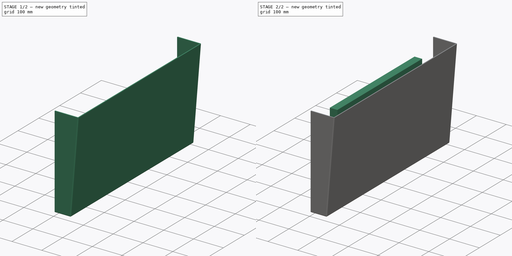
[diagram: build sequence overview — one tinted view per stage of 2, left to right]
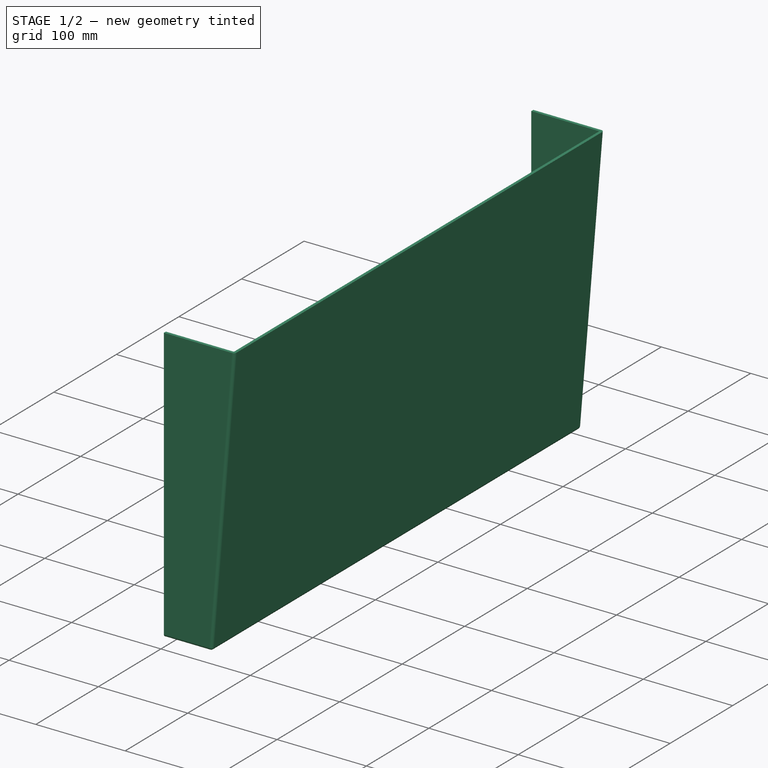
[diagram: stage 1 of 2 — iso view after this stage's code; geometry added in this stage tinted green]
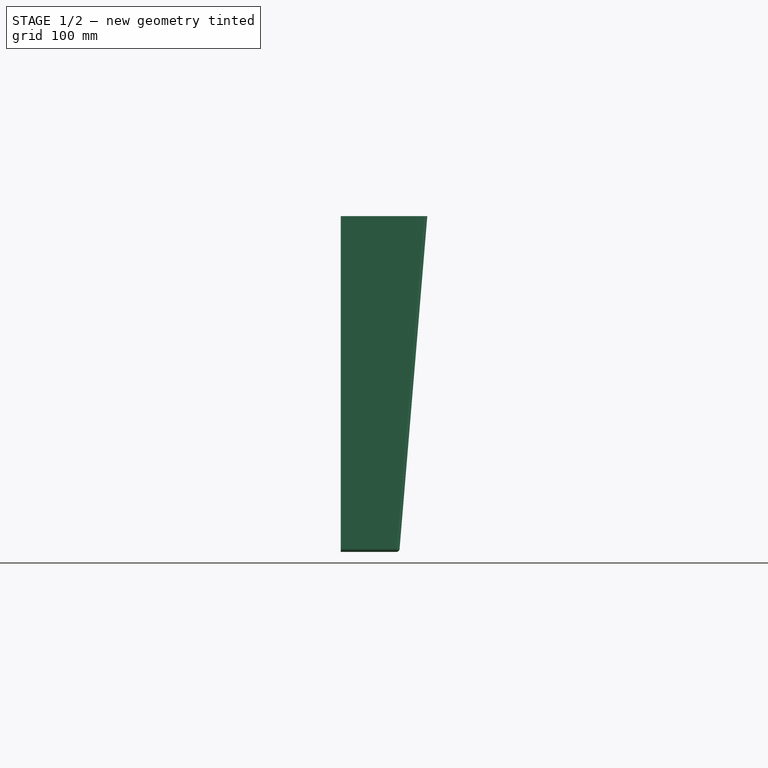
[diagram: stage 1 of 2 — front view after this stage's code; geometry added in this stage tinted green]
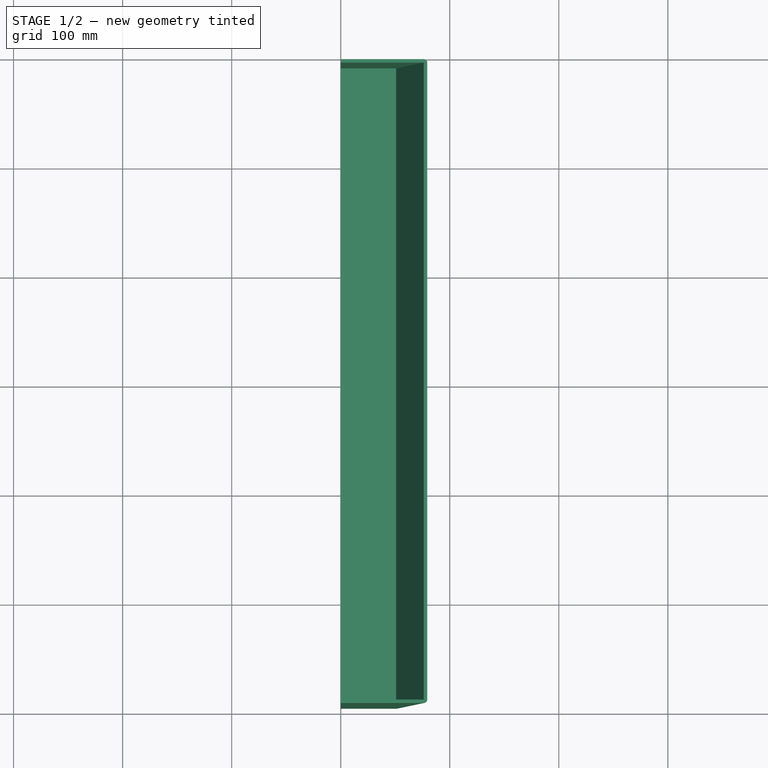
[diagram: stage 1 of 2 — top view after this stage's code; geometry added in this stage tinted green]
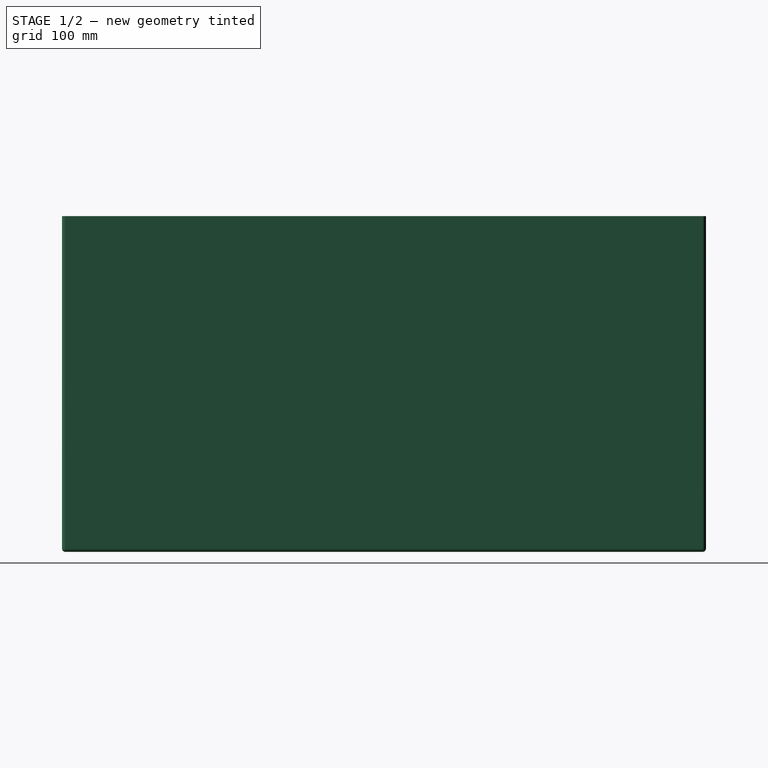
[diagram: stage 1 of 2 — right view after this stage's code; geometry added in this stage tinted green]
FCSTD DOCUMENT  (FreeCAD 1.0R39109 (Git))
Label: intake
License: All rights reserved
LicenseURL: http://en.wikipedia.org/wiki/All_rights_reserved
objects: Sketcher::SketchObject×2, PartDesign::Pad×2, PartDesign::Body×2, PartDesign::Thickness×1
note: 15 computed .brp shape members not serialized (recipe doc carries the construction recipe); baked Part::Feature solids carry a one-line shape summary decoded from their .brp
EXTERNAL_REF file=enclosure-dims.FCStd obj=Spreadsheet

FEATURE [PartDesign::Body] Body  label="filter001"
  AllowCompound = false
  Group = -> [Sketch,Pad]
  Origin = -> Origin
  Tip = -> Pad
FEATURE [Sketcher::SketchObject] Sketch001
  ArcFitTolerance = 0
  FullyConstrained = true
  MakeInternals = false
  MapMode = 5
  Placement = pos=(0,0,0) rot=(1,0,0;1.5708rad)
  expr: Constraints[8] = 2 * <<enclosure-dims>>#<<Spreadsheet>>.base_t + <<enclosure-dims>>#<<Spreadsheet>>.exhaust_w
  sketch-geometry (4):
    g0: LineSegment StartX=0 StartY=-177.8 StartZ=0 EndX=50.8 EndY=-177.8 EndZ=0
    g1: LineSegment StartX=50.8 StartY=-177.8 StartZ=0 EndX=76.2 EndY=127 EndZ=0
    g2: LineSegment StartX=76.2 StartY=127 StartZ=0 EndX=0 EndY=127 EndZ=0
    g3: LineSegment StartX=0 StartY=127 StartZ=0 EndX=0 EndY=-177.8 EndZ=0
  constraints (12):
    c: Horizontal(g0)
    c: Coincident(g0,g1)
    c: Coincident(g1,g2)
    c: PointOnObject(g2,g-2)
    c: Coincident(g2,g3)
    c: Coincident(g3,g0)
    c: Vertical(g3)
    c: Horizontal(g2)
    c: DistanceX(g2,g2) = 76.2
    c: DistanceX(g0,g0) = 50.8
    c: DistanceY(g3,g3) = 304.8
    c: DistanceY(g-1,g2) = 127
FEATURE [PartDesign::Pad] Pad001
  Direction = (0,-1,2e-16)
  Length = 584.2
  Length2 = 10
  Midplane = true
  Placement = pos=(0,0,0) rot=(1,0,0;1.5708rad)
  Profile = -> Sketch001
  ReferenceAxis = -> Sketch001 [N_Axis]
  Suppressed = false
  Type = 0
FEATURE [PartDesign::Thickness] Thickness
  Base = -> Pad001 [Face3,Face4]
  BaseFeature = -> Pad001
  Intersection = false
  Join = 0
  Mode = 0
  SupportTransform = false
  Suppressed = false
  Value = 3.175
FEATURE [PartDesign::Body] Body001  label="transition"
  AllowCompound = false
  Group = -> [Sketch001,Pad001,Thickness]
  Origin = -> Origin001
  Tip = -> Thickness
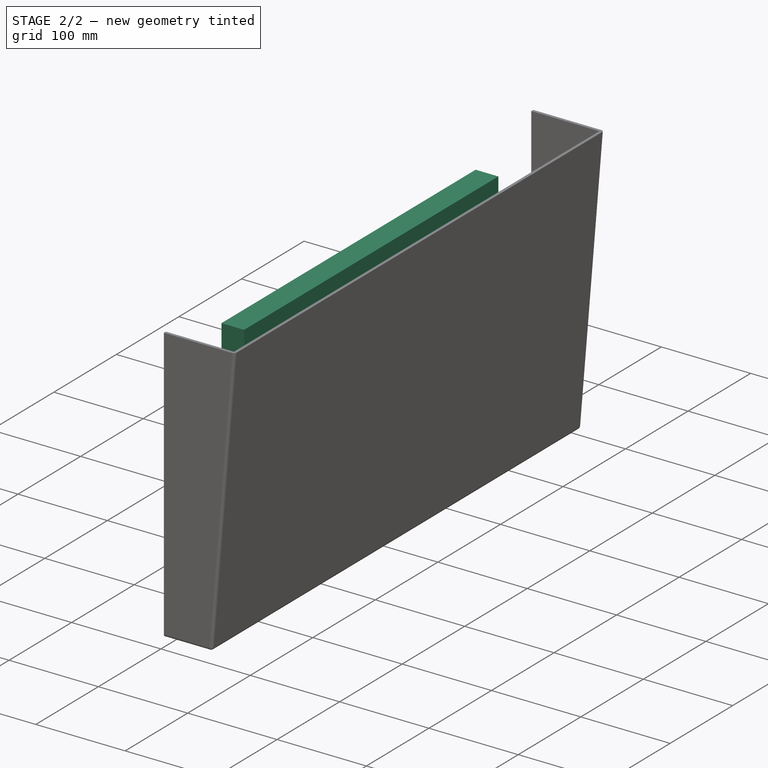
[diagram: stage 2 of 2 — iso view after this stage's code; geometry added in this stage tinted green]
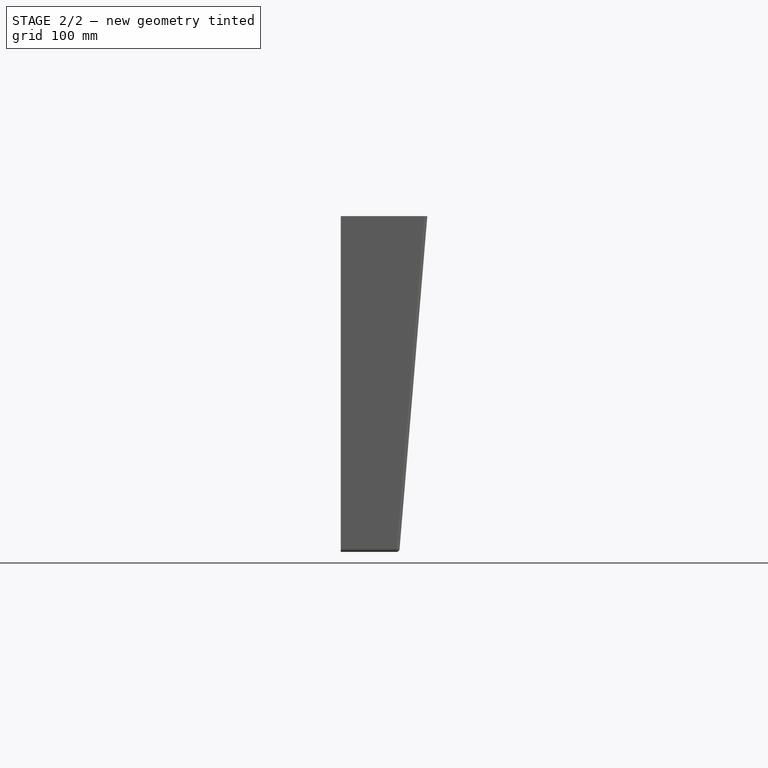
[diagram: stage 2 of 2 — front view after this stage's code; geometry added in this stage tinted green]
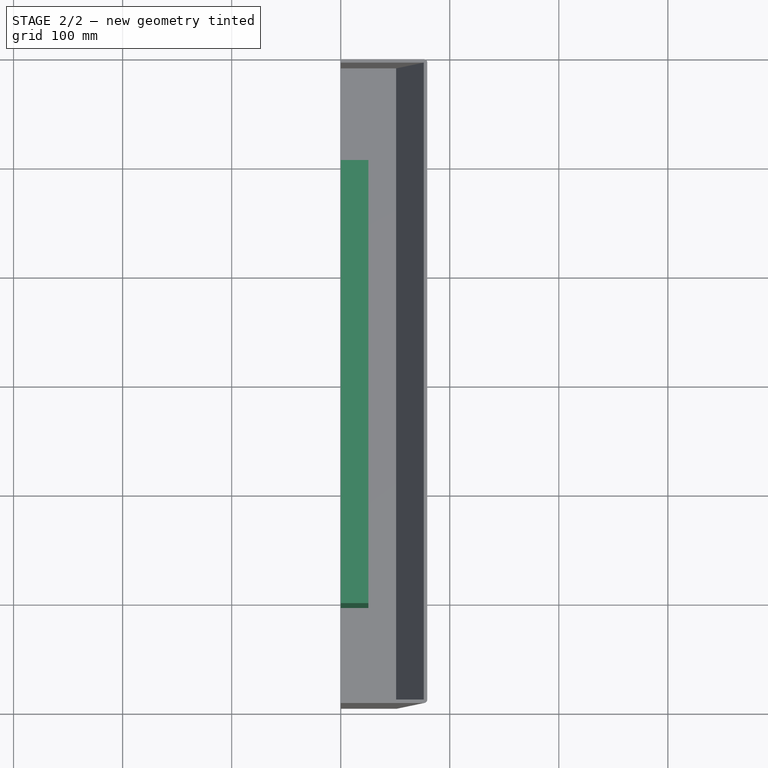
[diagram: stage 2 of 2 — top view after this stage's code; geometry added in this stage tinted green]
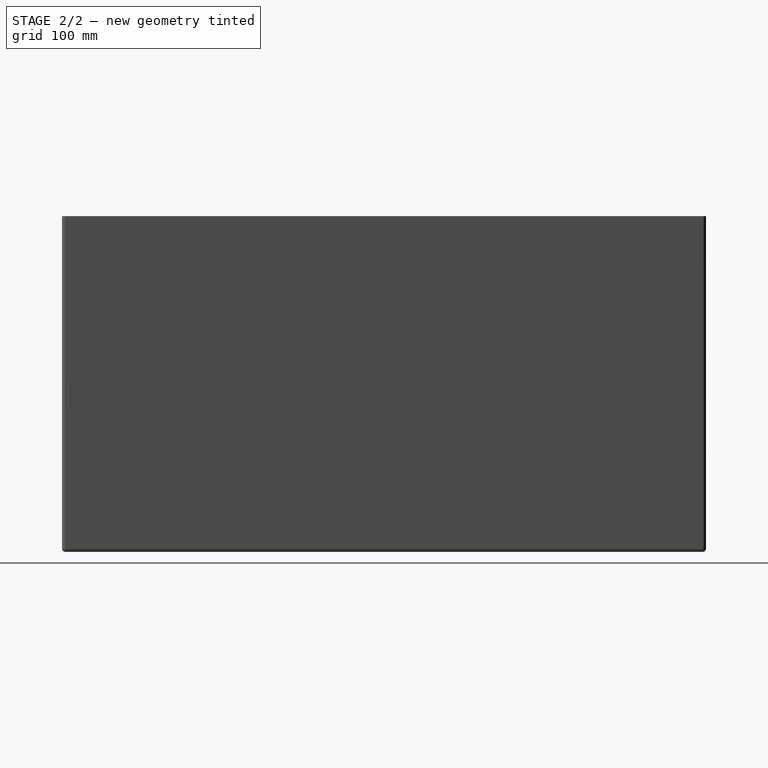
[diagram: stage 2 of 2 — right view after this stage's code; geometry added in this stage tinted green]
FEATURE [Sketcher::SketchObject] Sketch
  ArcFitTolerance = 0
  FullyConstrained = true
  MakeInternals = false
  MapMode = 5
  Placement = pos=(0,0,0) rot=(0.57735,0.57735,0.57735;2.0944rad)
  sketch-geometry (4):
    g0: LineSegment StartX=-203.2 StartY=101.6 StartZ=0 EndX=203.2 EndY=101.6 EndZ=0
    g1: LineSegment StartX=203.2 StartY=101.6 StartZ=0 EndX=203.2 EndY=-152.4 EndZ=0
    g2: LineSegment StartX=203.2 StartY=-152.4 StartZ=0 EndX=-203.2 EndY=-152.4 EndZ=0
    g3: LineSegment StartX=-203.2 StartY=-152.4 StartZ=0 EndX=-203.2 EndY=101.6 EndZ=0
  constraints (11):
    c: Coincident(g0,g1)
    c: Coincident(g1,g2)
    c: Coincident(g2,g3)
    c: Coincident(g3,g0)
    c: Horizontal(g2)
    c: Vertical(g1)
    c: DistanceX(g0,g0) = 406.4
    c: Symmetric(g0,g0,g-2)
    c: DistanceY(g3,g3) = 254
    c: DistanceY(g-1,g0) = 101.6
    c: Vertical(g3)
FEATURE [PartDesign::Pad] Pad  label="filter"
  Direction = (1,1e-16,-1e-16)
  Length = 25.4
  Length2 = 10
  Placement = pos=(0,0,0) rot=(0.57735,0.57735,0.57735;2.0944rad)
  Profile = -> Sketch
  ReferenceAxis = -> Sketch [N_Axis]
  Suppressed = false
  Type = 0
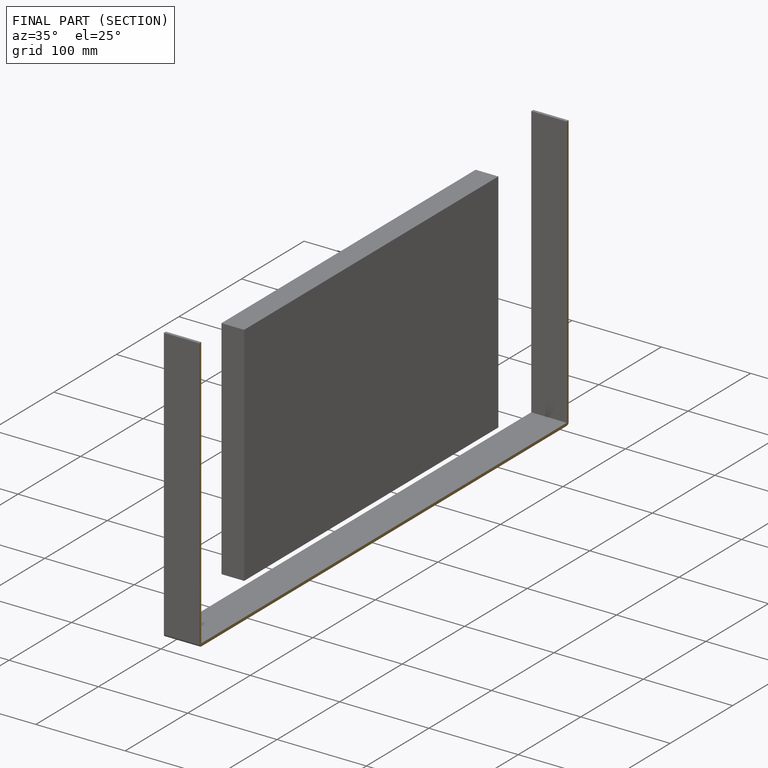
[diagram: finished part — half-section view (interior)]
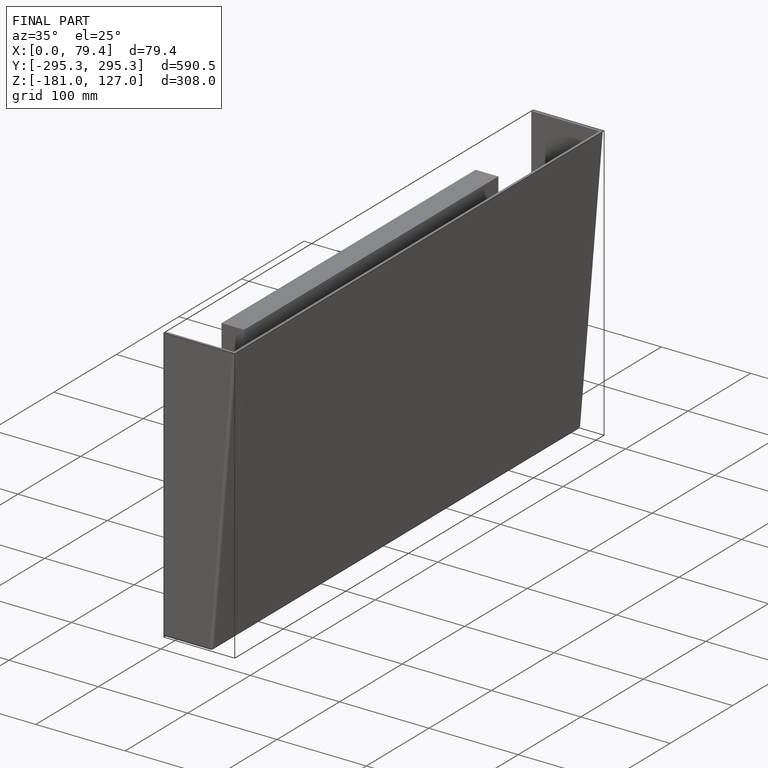
[diagram: finished part — iso view with bounding-box wireframe]
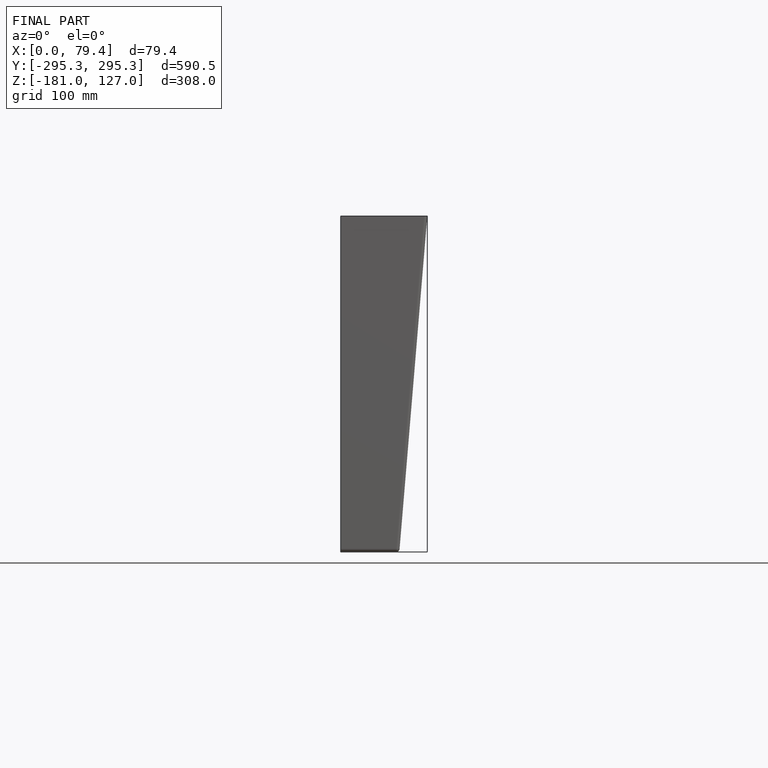
[diagram: finished part — front view with bounding-box wireframe]
